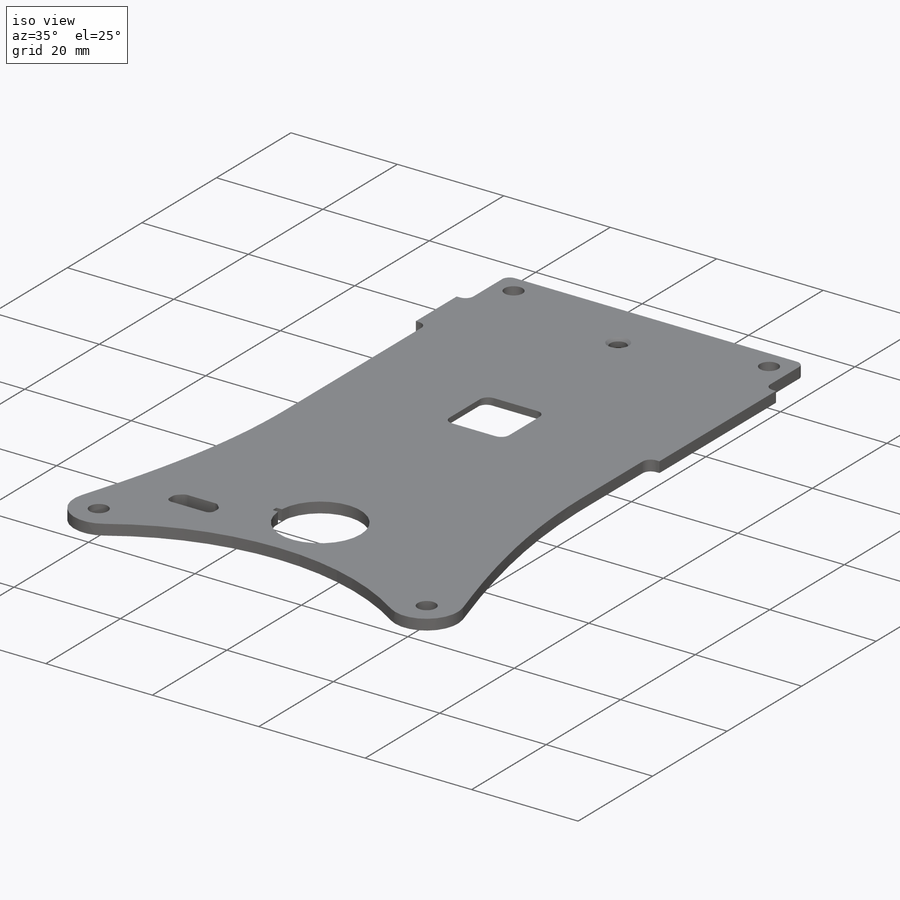
[diagram: iso view]
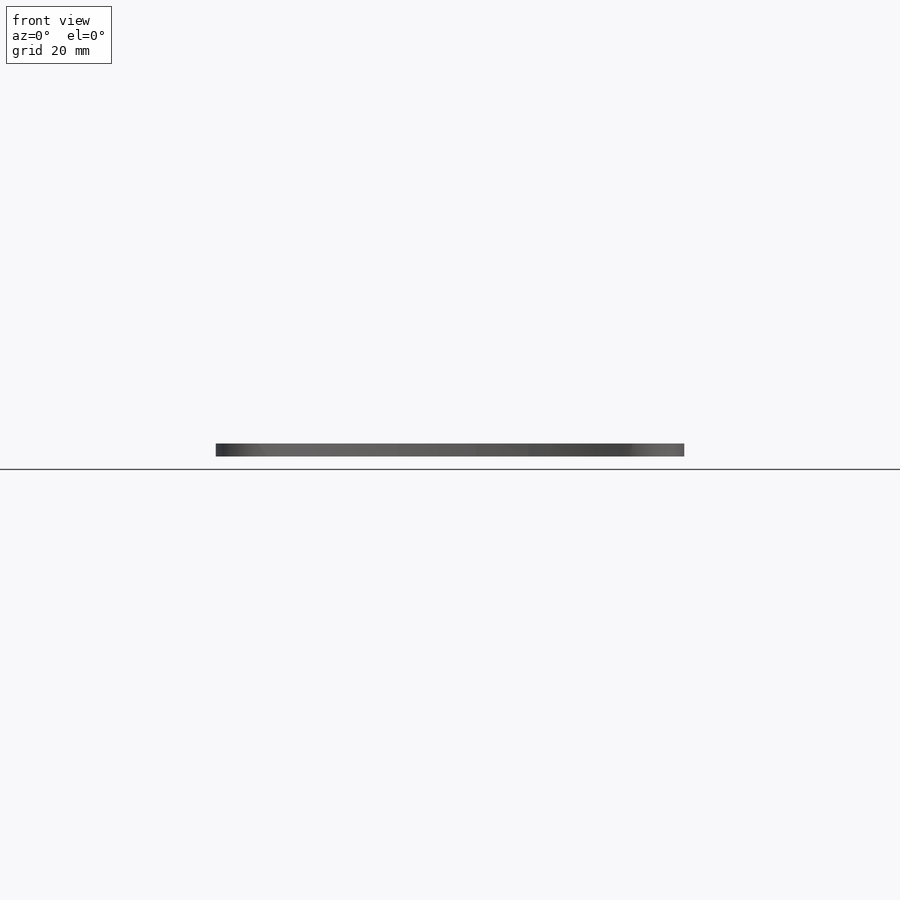
[diagram: front view]
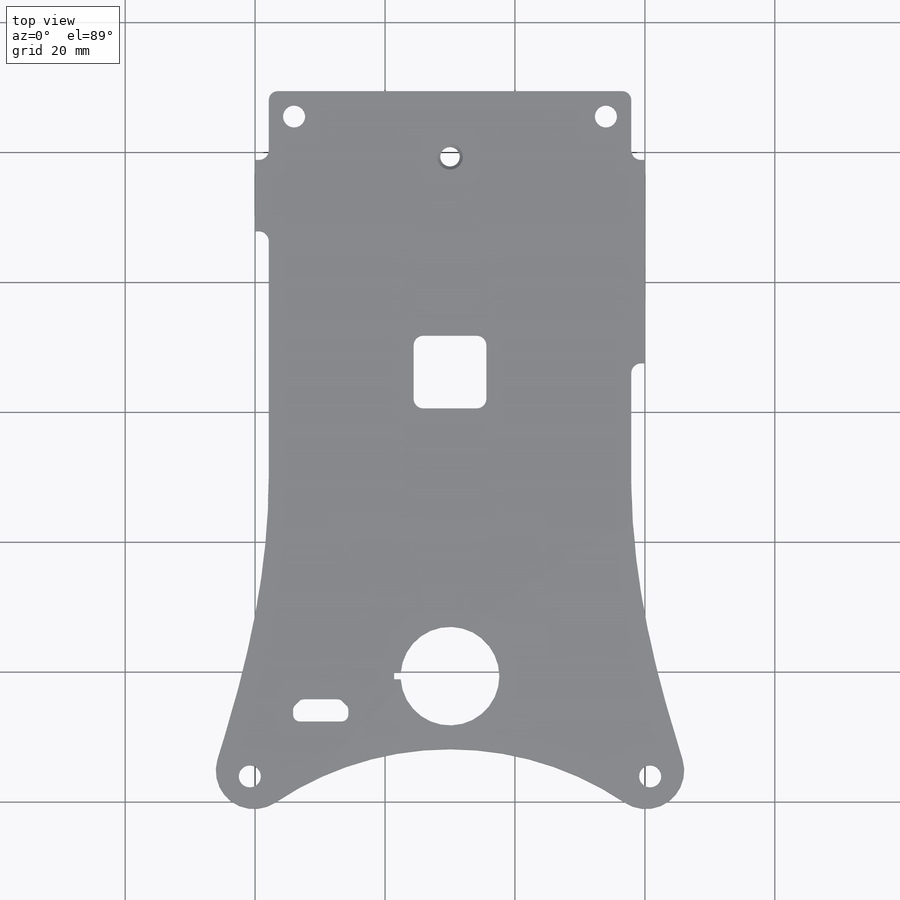
[diagram: top view]
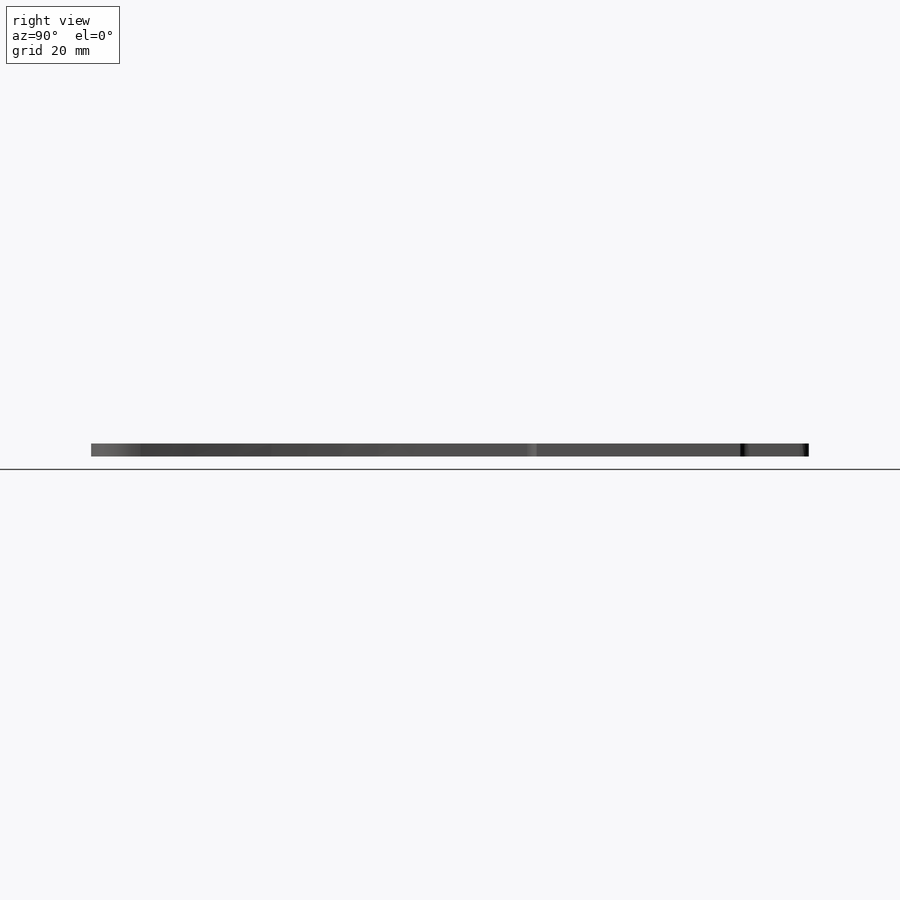
[diagram: right view]
SOLIDWORKS PART (.sldprt)
format: sldprt  version: not decoded by parser v0  size: 2,292,224 bytes
history: native  units: mm
features: sketch x129, hole x59, cut_extrude x8, fillet x4, plane x3, extrude x2, material x1, chamfer x1 (+8 scaffold rows collapsed)
feature tree (215):
  scaffold x8  (default folders/planes/origin — collapsed)
  material  "3.1355 (EN-AW 2024)"
  plane  "Спереди"
  plane  "Сверху"
  plane  "Справа"
  sketch  "Эскиз1"  dims[D1=0.7mm]
  cut_extrude  "Вырез-Вытянуть1"  Depth=2mm
  hole  "Отверстие с зазором M32"  [1 undecoded]
  sketch  "Эскиз4"
  sketch  "Эскиз5"  dims[Диаметр отверстия=3.4mm Глубина отверстия=2.0mm Угол заточки сверла=118.0deg]
  hole  "Отверстие с зазором M33"  [1 undecoded]
  sketch  "Эскиз6"
  sketch  "Эскиз7"  dims[Диаметр отверстия=3.4mm Глубина отверстия=2.0mm Угол заточки сверла=118.0deg]
  hole  "Отверстие с зазором M34"  [1 undecoded]
  sketch  "Эскиз8"
  sketch  "Эскиз9"  dims[Диаметр отверстия=3.4mm Глубина отверстия=2.0mm Угол заточки сверла=118.0deg]
  hole  "Отверстие с зазором M35"  [1 undecoded]
  sketch  "Эскиз10"
  sketch  "Эскиз11"  dims[Диаметр отверстия=3.4mm Глубина отверстия=2.0mm Угол заточки сверла=118.0deg]
  hole  "Отверстие с зазором M36"  [1 undecoded]
  sketch  "Эскиз13"
  sketch  "Эскиз14"  dims[Диаметр отверстия=3.4mm Глубина отверстия=2.0mm Угол заточки сверла=118.0deg]
  hole  "Отверстие с зазором M37"  [1 undecoded]
  sketch  "Эскиз15"
  sketch  "Эскиз16"  dims[Диаметр отверстия=3.4mm Глубина отверстия=2.0mm Угол заточки сверла=118.0deg]
  hole  "Отверстие с зазором M38"  [1 undecoded]
  sketch  "Эскиз17"
  sketch  "Эскиз18"  dims[Диаметр отверстия=3.4mm Глубина отверстия=2.0mm Угол заточки сверла=118.0deg]
  hole  "Отверстие с зазором M39"  [1 undecoded]
  sketch  "Эскиз19"
  sketch  "Эскиз20"  dims[Диаметр отверстия=3.4mm Глубина отверстия=2.0mm Угол заточки сверла=118.0deg]
  hole  "Отверстие с зазором M310"  [1 undecoded]
  sketch  "Эскиз21"
  sketch  "Эскиз22"  dims[Диаметр отверстия=3.4mm Глубина отверстия=2.0mm Угол заточки сверла=118.0deg]
  hole  "Отверстие с зазором M311"  [1 undecoded]
  sketch  "Эскиз23"
  sketch  "Эскиз24"  dims[Диаметр отверстия=3.4mm Глубина отверстия=2.0mm Угол заточки сверла=118.0deg]
  sketch  "Эскиз25"  dims[D1=0.1mm D2=0.1mm D3=0.1mm D4=0.0mm]
  extrude  "Бобышка-Вытянуть1"  [1 undecoded]
  hole  "Отверстие с зазором M312"  [1 undecoded]
  sketch  "Эскиз26"
  sketch  "Эскиз27"  dims[Диаметр отверстия=3.4mm Глубина отверстия=2.0mm Угол заточки сверла=118.0deg]
  hole  "Отверстие с зазором M313"  [1 undecoded]
  sketch  "Эскиз28"
  sketch  "Эскиз29"  dims[Диаметр отверстия=3.4mm Глубина отверстия=2.0mm Угол заточки сверла=118.0deg]
  hole  "Отверстие с зазором M314"  [1 undecoded]
  sketch  "Эскиз30"
  sketch  "Эскиз31"  dims[Диаметр отверстия=3.4mm Глубина отверстия=2.0mm Угол заточки сверла=118.0deg]
  hole  "Отверстие с зазором M315"  [1 undecoded]
  sketch  "Эскиз32"
  sketch  "Эскиз33"  dims[Диаметр отверстия=3.4mm Глубина отверстия=2.0mm Угол заточки сверла=118.0deg]
  hole  "Отверстие с зазором M316"  [1 undecoded]
  sketch  "Эскиз34"
  sketch  "Эскиз35"  dims[Диаметр отверстия=3.4mm Глубина отверстия=2.0mm Угол заточки сверла=118.0deg]
  hole  "Отверстие с зазором M317"  [1 undecoded]
  sketch  "Эскиз36"
  sketch  "Эскиз37"  dims[Диаметр отверстия=3.4mm Глубина отверстия=2.0mm Угол заточки сверла=118.0deg]
  hole  "Отверстие с зазором M318"  [1 undecoded]
  sketch  "Эскиз38"
  sketch  "Эскиз39"  dims[Диаметр отверстия=3.4mm Глубина отверстия=2.0mm Угол заточки сверла=118.0deg]
  hole  "Отверстие с зазором M319"  [1 undecoded]
  sketch  "Эскиз40"
  sketch  "Эскиз41"  dims[Диаметр отверстия=3.4mm Глубина отверстия=2.0mm Угол заточки сверла=118.0deg]
  hole  "Отверстие с зазором M320"  [1 undecoded]
  sketch  "Эскиз42"
  sketch  "Эскиз43"  dims[Диаметр отверстия=3.4mm Глубина отверстия=2.0mm Угол заточки сверла=118.0deg]
  hole  "Отверстие с зазором M321"  [1 undecoded]
  sketch  "Эскиз44"
  sketch  "Эскиз45"  dims[Диаметр отверстия=3.4mm Глубина отверстия=2.0mm Угол заточки сверла=118.0deg]
  hole  "Отверстие с зазором M322"  [1 undecoded]
  sketch  "Эскиз46"
  sketch  "Эскиз47"  dims[Диаметр отверстия=3.4mm Глубина отверстия=2.0mm Угол заточки сверла=118.0deg]
  hole  "Отверстие с зазором M323"  [1 undecoded]
  sketch  "Эскиз48"
  sketch  "Эскиз49"  dims[Диаметр отверстия=3.4mm Глубина отверстия=2.0mm Угол заточки сверла=118.0deg]
  hole  "Отверстие с зазором M324"  [1 undecoded]
  sketch  "Эскиз50"
  sketch  "Эскиз51"  dims[Диаметр отверстия=3.4mm Глубина отверстия=2.0mm Угол заточки сверла=118.0deg]
  hole  "Отверстие с зазором M325"  [1 undecoded]
  sketch  "Эскиз52"
  sketch  "Эскиз53"  dims[Диаметр отверстия=3.4mm Глубина отверстия=2.0mm Угол заточки сверла=118.0deg]
  hole  "Отверстие с зазором M326"  [1 undecoded]
  sketch  "Эскиз54"
  sketch  "Эскиз55"  dims[Диаметр отверстия=3.4mm Глубина отверстия=2.0mm Угол заточки сверла=118.0deg]
  hole  "Отверстие с зазором M327"  [1 undecoded]
  sketch  "Эскиз56"
  sketch  "Эскиз57"  dims[Диаметр отверстия=3.4mm Глубина отверстия=2.0mm Угол заточки сверла=118.0deg]
  hole  "Отверстие с зазором M328"  [1 undecoded]
  sketch  "Эскиз58"
  sketch  "Эскиз59"  dims[Диаметр отверстия=3.4mm Глубина отверстия=2.0mm Угол заточки сверла=118.0deg]
  hole  "Отверстие с зазором M329"  [1 undecoded]
  sketch  "Эскиз60"
  sketch  "Эскиз61"  dims[Диаметр отверстия=3.4mm Глубина отверстия=2.0mm Угол заточки сверла=118.0deg]
  fillet  "Скругление1"  Radius=1.5mm
  hole  "Отверстие с зазором M330"  [1 undecoded]
  sketch  "Эскиз62"
  sketch  "Эскиз63"  dims[Диаметр отверстия=3.4mm Глубина отверстия=2.0mm Угол заточки сверла=118.0deg]
  hole  "Отверстие с зазором M331"  [1 undecoded]
  sketch  "Эскиз64"
  sketch  "Эскиз65"  dims[Диаметр отверстия=3.4mm Глубина отверстия=2.0mm Угол заточки сверла=118.0deg]
  hole  "Отверстие с зазором M332"  [1 undecoded]
  sketch  "Эскиз66"
  sketch  "Эскиз67"  dims[Диаметр отверстия=3.4mm Глубина отверстия=2.0mm Угол заточки сверла=118.0deg]
  hole  "Отверстие с зазором M333"  [1 undecoded]
  sketch  "Эскиз68"
  sketch  "Эскиз69"  dims[Диаметр отверстия=3.4mm Глубина отверстия=2.0mm Угол заточки сверла=118.0deg]
  hole  "Отверстие с зазором M334"  [1 undecoded]
  sketch  "Эскиз70"
  sketch  "Эскиз71"  dims[Диаметр отверстия=3.4mm Глубина отверстия=2.0mm Угол заточки сверла=118.0deg]
  sketch  "Эскиз73"  dims[D1=0.1mm D2=0.1mm]
  cut_extrude  "Вырез-Вытянуть2"  [1 undecoded]
  hole  "Отверстие с зазором M335"  [1 undecoded]
  sketch  "Эскиз74"
  sketch  "Эскиз75"  dims[Диаметр отверстия=3.4mm Глубина отверстия=2.0mm Угол заточки сверла=118.0deg]
  sketch  "Эскиз76"  dims[D1=0.1mm D2=0.1mm]
  extrude  "Бобышка-Вытянуть2"  [1 undecoded]
  fillet  "Скругление2"  Radius=1.5mm
  hole  "Отверстие с зазором M336"  [1 undecoded]
  sketch  "Эскиз77"
  sketch  "Эскиз78"  dims[Диаметр отверстия=3.4mm Глубина отверстия=2.0mm Угол заточки сверла=118.0deg]
  hole  "Отверстие с зазором M337"  [1 undecoded]
  sketch  "Эскиз79"
  sketch  "Эскиз80"  dims[Диаметр отверстия=3.4mm Глубина отверстия=2.0mm Угол заточки сверла=118.0deg]
  hole  "Отверстие с зазором M338"  [1 undecoded]
  sketch  "Эскиз81"
  sketch  "Эскиз82"  dims[Диаметр отверстия=3.4mm Глубина отверстия=2.0mm Угол заточки сверла=118.0deg]
  hole  "Отверстие с зазором M339"  [1 undecoded]
  sketch  "Эскиз83"
  sketch  "Эскиз84"  dims[Диаметр отверстия=3.4mm Глубина отверстия=2.0mm Угол заточки сверла=118.0deg]
  hole  "Отверстие с зазором M340"  [1 undecoded]
  sketch  "Эскиз85"
  sketch  "Эскиз86"  dims[Диаметр отверстия=3.4mm Глубина отверстия=2.0mm Угол заточки сверла=118.0deg]
  hole  "Отверстие с зазором M341"  [1 undecoded]
  sketch  "Эскиз87"
  sketch  "Эскиз88"  dims[Диаметр отверстия=3.4mm Глубина отверстия=2.0mm Угол заточки сверла=118.0deg]
  hole  "Отверстие с зазором M342"  [1 undecoded]
  sketch  "Эскиз89"
  sketch  "Эскиз90"  dims[Диаметр отверстия=3.4mm Глубина отверстия=2.0mm Угол заточки сверла=118.0deg]
  hole  "Отверстие с зазором M343"  [1 undecoded]
  sketch  "Эскиз91"
  sketch  "Эскиз92"  dims[Диаметр отверстия=3.4mm Глубина отверстия=2.0mm Угол заточки сверла=118.0deg]
  hole  "Отверстие с зазором M344"  [1 undecoded]
  sketch  "Эскиз93"
  sketch  "Эскиз94"  dims[Диаметр отверстия=3.4mm Глубина отверстия=2.0mm Угол заточки сверла=118.0deg]
  hole  "Отверстие с зазором M345"  [1 undecoded]
  sketch  "Эскиз95"
  sketch  "Эскиз96"  dims[Диаметр отверстия=3.4mm Глубина отверстия=2.0mm Угол заточки сверла=118.0deg]
  hole  "Отверстие с зазором M346"  [1 undecoded]
  sketch  "Эскиз97"
  sketch  "Эскиз98"  dims[Диаметр отверстия=3.4mm Глубина отверстия=2.0mm Угол заточки сверла=118.0deg]
  hole  "Отверстие с зазором M347"  [1 undecoded]
  sketch  "Эскиз99"
  sketch  "Эскиз100"  dims[Диаметр отверстия=3.4mm Глубина отверстия=2.0mm Угол заточки сверла=118.0deg]
  hole  "Отверстие с зазором M348"  [1 undecoded]
  sketch  "Эскиз101"
  sketch  "Эскиз102"  dims[Диаметр отверстия=3.4mm Глубина отверстия=2.0mm Угол заточки сверла=118.0deg]
  hole  "Отверстие с зазором M349"  [1 undecoded]
  sketch  "Эскиз103"
  sketch  "Эскиз104"  dims[Диаметр отверстия=3.4mm Глубина отверстия=2.0mm Угол заточки сверла=118.0deg]
  hole  "Отверстие с зазором M350"  [1 undecoded]
  sketch  "Эскиз105"
  sketch  "Эскиз106"  dims[Диаметр отверстия=3.4mm Глубина отверстия=2.0mm Угол заточки сверла=118.0deg]
  hole  "Отверстие с зазором M351"  [1 undecoded]
  sketch  "Эскиз107"
  sketch  "Эскиз108"  dims[Диаметр отверстия=3.4mm Глубина отверстия=2.0mm Угол заточки сверла=118.0deg]
  hole  "Отверстие с зазором M352"  [1 undecoded]
  sketch  "Эскиз109"
  sketch  "Эскиз110"  dims[Диаметр отверстия=3.4mm Глубина отверстия=2.0mm Угол заточки сверла=118.0deg]
  hole  "Отверстие с зазором M353"  [1 undecoded]
  sketch  "Эскиз111"
  sketch  "Эскиз112"  dims[Диаметр отверстия=3.4mm Глубина отверстия=2.0mm Угол заточки сверла=118.0deg]
  hole  "Отверстие с зазором M354"  [1 undecoded]
  sketch  "Эскиз113"
  sketch  "Эскиз114"  dims[Диаметр отверстия=3.4mm Глубина отверстия=2.0mm Угол заточки сверла=118.0deg]
  hole  "Отверстие с зазором M355"  [1 undecoded]
  sketch  "Эскиз115"
  sketch  "Эскиз116"  dims[Диаметр отверстия=3.4mm Глубина отверстия=2.0mm Угол заточки сверла=118.0deg]
  hole  "Отверстие с зазором M356"  [1 undecoded]
  sketch  "Эскиз117"
  sketch  "Эскиз118"  dims[Диаметр отверстия=3.4mm Глубина отверстия=2.0mm Угол заточки сверла=118.0deg]
  hole  "Отверстие с зазором M357"  [1 undecoded]
  sketch  "Эскиз119"
  sketch  "Эскиз120"  dims[Диаметр отверстия=3.4mm Глубина отверстия=2.0mm Угол заточки сверла=118.0deg]
  hole  "Отверстие с зазором M358"  [1 undecoded]
  sketch  "Эскиз121"
  sketch  "Эскиз122"  dims[Диаметр отверстия=3.4mm Глубина отверстия=2.0mm Угол заточки сверла=118.0deg]
  sketch  "Эскиз123"  dims[D1=0.1mm]
  cut_extrude  "Вырез-Вытянуть3"  [1 undecoded]
  sketch  "Эскиз124"  dims[D1=1.0mm D2=2.0mm]
  cut_extrude  "Вырез-Вытянуть4"  [1 undecoded]
  sketch  "Эскиз126"  dims[D1=0.0mm D2=0.4mm]
  cut_extrude  "Вырез-Вытянуть5"  [1 undecoded]
  hole  "Отверстие с зазором M359"  [1 undecoded]
  sketch  "Эскиз129"
  sketch  "Эскиз130"  dims[Диаметр отверстия=3.4mm Глубина отверстия=2.0mm Угол заточки сверла=118.0deg]
  fillet  "Скругление3"  Radius=1.5mm
  sketch  "Эскиз131"  dims[D1=0.5mm]
  cut_extrude  "Вырез-Вытянуть6"  Depth=1.2mm
  fillet  "Скругление4"  Radius=1.5mm
  sketch  "Эскиз132"  dims[D1=3.0mm]
  cut_extrude  "Вырез-Вытянуть7"  [1 undecoded]
  chamfer  "Фаска1"  Distance=0.5mm Angle=45deg
  hole  "Отверстие с зазором M360"  [1 undecoded]
  sketch  "Эскиз133"
  sketch  "Эскиз134"  dims[Диаметр отверстия=3.4mm Глубина отверстия=2.0mm Угол заточки сверла=118.0deg]
  sketch  "Эскиз135"
  sketch  "Эскиз137"
  cut_extrude  "Вырез-Вытянуть8"  [1 undecoded]
decode coverage: 75 of 203 modeling features carry decoded parameters
note: 67 parameter values undecoded
summary: no parameter record found for 67 features
note: suppression state not decoded; provenance and decode notes live in map.json
